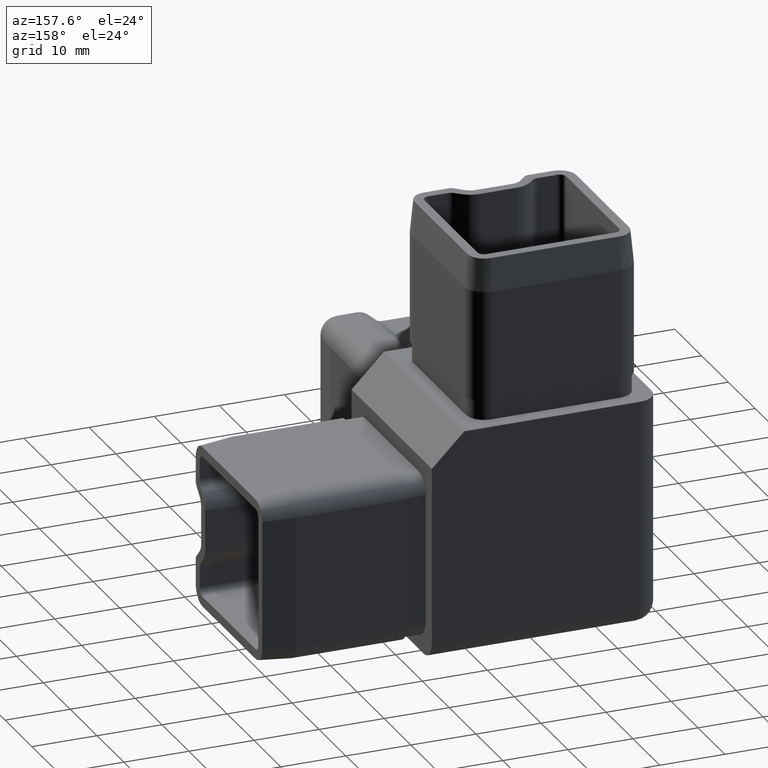
[diagram: clean part render]
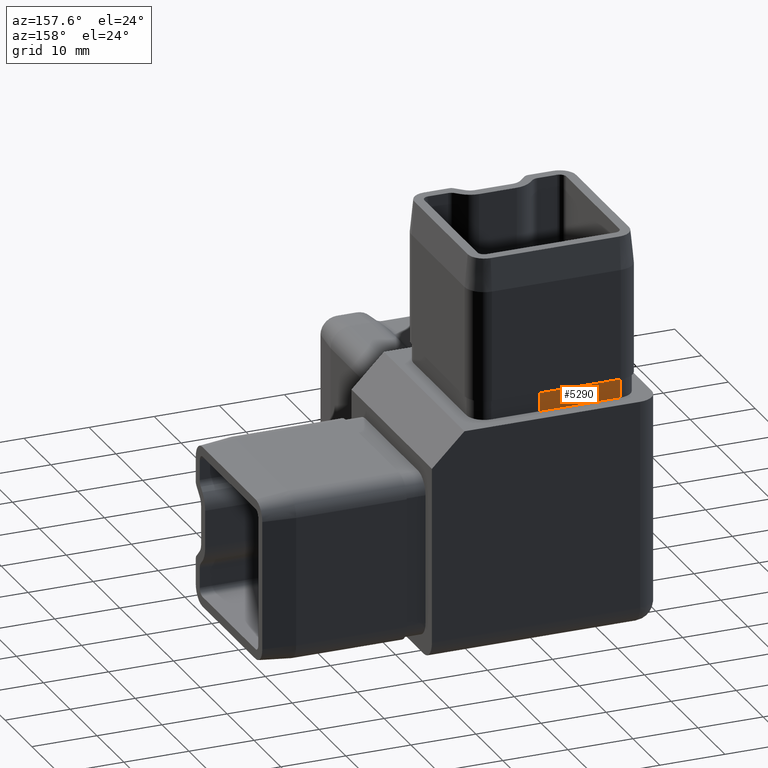
[diagram: same view with one face highlighted and labeled with its STEP entity id]
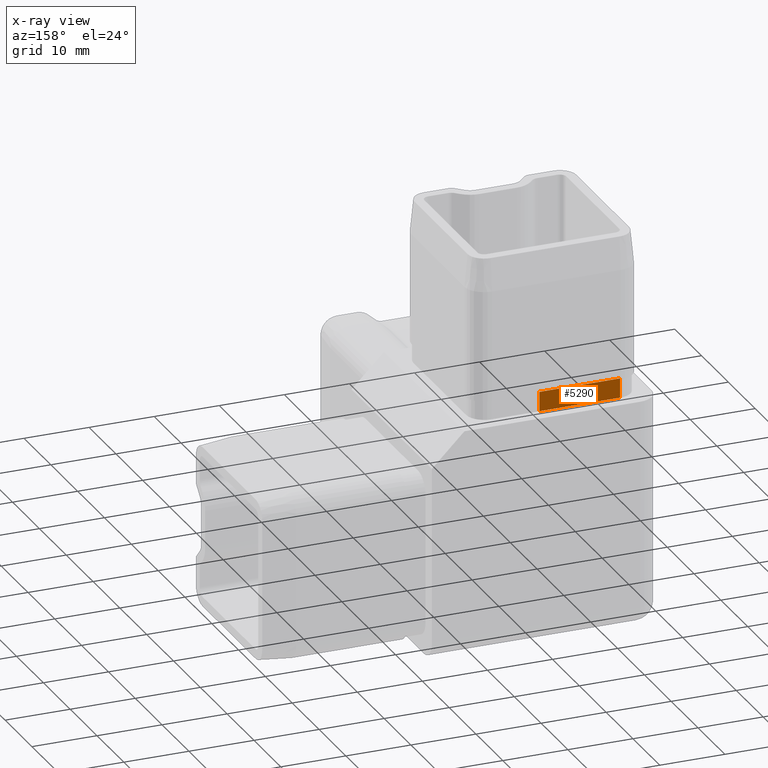
[diagram: x-ray of the same camera — body ghosted, the highlighted face saturated]
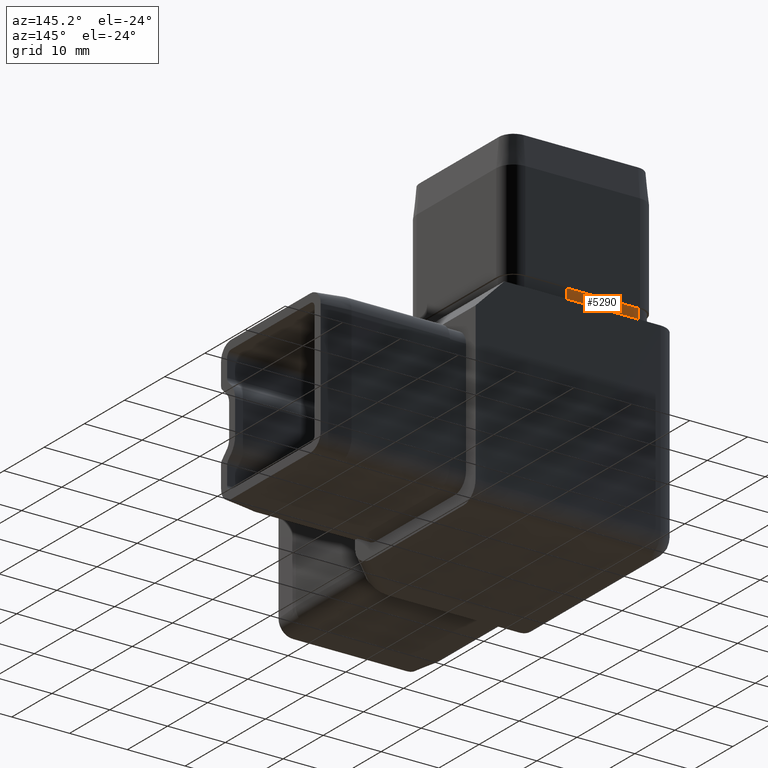
[diagram: same view with one face highlighted and labeled with its STEP entity id]
A machine part, auxiliary view. The second image highlights one B-rep face of the part: STEP entity #5290.
The next image is the same camera in x-ray: the body ghosted, the highlighted face saturated — about 0% of this face is hidden behind the body in this view.
A second angle (auxiliary view) of the same face is appended — the face is thin or edge-on in the first view.
In plain terms, the highlighted planar face has unit normal (0, -1, 0).
Its self-contained STEP definition (entity closure, byte-faithful):
#575 = VERTEX_POINT ( 'NONE', #6725 ) ;
#793 = EDGE_CURVE ( 'NONE', #575, #4973, #8514, .T. ) ;
#1435 = B_SPLINE_CURVE_WITH_KNOTS ( 'NONE', 3,
 ( #2820, #11646, #5560, #18755 ),
 .UNSPECIFIED., .F., .F.,
 ( 4, 4 ),
 ( 0.0000000000000000000, 1.000000000000000000 ),
 .UNSPECIFIED. ) ;
#1775 = VECTOR ( 'NONE', #13929, 1000.000000000000000 ) ;
#2820 = CARTESIAN_POINT ( 'NONE',  ( 0.0000000000000000000, 15.10000000000000900, 20.50000000000000000 ) ) ;
#2863 = DIRECTION ( 'NONE',  ( 0.0000000000000000000, -1.000000000000000000, 0.0000000000000000000 ) ) ;
#4389 = DIRECTION ( 'NONE',  ( 0.0000000000000000000, -0.0000000000000000000, -1.000000000000000000 ) ) ;
#4486 = EDGE_CURVE ( 'NONE', #12084, #575, #6301, .T. ) ;
#4973 = VERTEX_POINT ( 'NONE', #9489 ) ;
#5290 = ADVANCED_FACE ( 'NONE', ( #18067 ), #6042, .F. ) ;
#5351 = ORIENTED_EDGE ( 'NONE', *, *, #4486, .F. ) ;
#5560 = CARTESIAN_POINT ( 'NONE',  ( 5.204170427930421300E-015, 15.10000000000000100, 18.50000000000000400 ) ) ;
#5576 = EDGE_LOOP ( 'NONE', ( #5351, #14419, #8923, #15390 ) ) ;
#5662 = LINE ( 'NONE', #16896, #1775 ) ;
#5920 = DIRECTION ( 'NONE',  ( 1.000000000000000000, 0.0000000000000000000, 0.0000000000000000000 ) ) ;
#6042 = PLANE ( 'NONE',  #15356 ) ;
#6054 = EDGE_CURVE ( 'NONE', #14921, #4973, #1435, .T. ) ;
#6301 = LINE ( 'NONE', #16582, #18304 ) ;
#6725 = CARTESIAN_POINT ( 'NONE',  ( -12.39999999999999700, 15.10000000000000100, 17.50000000000000000 ) ) ;
#7097 = EDGE_CURVE ( 'NONE', #12084, #14921, #5662, .T. ) ;
#7200 = CARTESIAN_POINT ( 'NONE',  ( 0.0000000000000000000, 15.10000000000000900, 20.50000000000000000 ) ) ;
#7438 = CARTESIAN_POINT ( 'NONE',  ( -12.39999999999999700, 15.10000000000000100, 17.50000000000000000 ) ) ;
#7498 = CARTESIAN_POINT ( 'NONE',  ( -12.39999999999999700, 15.10000000000000100, 20.50000000000000000 ) ) ;
#8514 = LINE ( 'NONE', #7438, #13051 ) ;
#8923 = ORIENTED_EDGE ( 'NONE', *, *, #6054, .T. ) ;
#9489 = CARTESIAN_POINT ( 'NONE',  ( 0.0000000000000000000, 15.10000000000000900, 17.50000000000000000 ) ) ;
#10905 = DIRECTION ( 'NONE',  ( 0.0000000000000000000, 0.0000000000000000000, -1.000000000000000000 ) ) ;
#11646 = CARTESIAN_POINT ( 'NONE',  ( 5.204170427930421300E-015, 15.10000000000000100, 19.50000000000000000 ) ) ;
#12084 = VERTEX_POINT ( 'NONE', #12849 ) ;
#12849 = CARTESIAN_POINT ( 'NONE',  ( -12.39999999999999700, 15.10000000000000100, 20.50000000000000000 ) ) ;
#13051 = VECTOR ( 'NONE', #5920, 1000.000000000000000 ) ;
#13929 = DIRECTION ( 'NONE',  ( 1.000000000000000000, 0.0000000000000000000, 0.0000000000000000000 ) ) ;
#14419 = ORIENTED_EDGE ( 'NONE', *, *, #7097, .T. ) ;
#14921 = VERTEX_POINT ( 'NONE', #7200 ) ;
#15356 = AXIS2_PLACEMENT_3D ( 'NONE', #7498, #2863, #4389 ) ;
#15390 = ORIENTED_EDGE ( 'NONE', *, *, #793, .F. ) ;
#16582 = CARTESIAN_POINT ( 'NONE',  ( -12.39999999999999700, 15.10000000000000100, 20.50000000000000000 ) ) ;
#16896 = CARTESIAN_POINT ( 'NONE',  ( -12.39999999999999700, 15.10000000000000100, 20.50000000000000000 ) ) ;
#18067 = FACE_OUTER_BOUND ( 'NONE', #5576, .T. ) ;
#18304 = VECTOR ( 'NONE', #10905, 1000.000000000000000 ) ;
#18755 = CARTESIAN_POINT ( 'NONE',  ( 0.0000000000000000000, 15.10000000000000900, 17.50000000000000000 ) ) ;